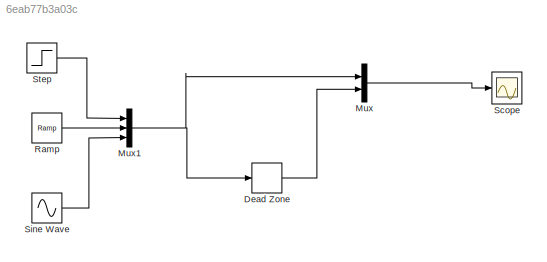
MODEL slx_6eab77b3a03c
KIND model
BLOCK [DeadZone] Dead Zone
BLOCK [Mux] Mux
  DisplayOption = bar
  Inputs = 2
  Ports = [2, 1]
BLOCK [Mux] Mux1
  DisplayOption = bar
  Inputs = 3
  Ports = [3, 1]
BLOCK [Reference] Ramp  REF=simulink/Sources/Ramp
  Ports = [0, 1]
  SourceBlock = simulink/Sources/Ramp
  SourceType = Ramp
  VectorParams1D = on
  X0 = 0
  slope = 1
  start = 0
BLOCK [Scope] Scope
  DataFormat = StructureWithTime
  Floating = off
  NumInputPorts = 1
  Ports = [1]
  SampleTime = 0
  ShowLegends = off
  TimeRange = 5
  ZoomMode = xonly
BLOCK [Sin] Sine Wave
  Amplitude = 5
  Frequency = 2*pi
  Ports = [0, 1]
  SampleTime = 0
BLOCK [Step] Step
  After = 5
  SampleTime = 0
LINE Dead Zone:1 -> Mux:2
NET Mux1:1 -> Dead Zone:1, Mux:1
LINE Mux:1 -> Scope:1
LINE Ramp:1 -> Mux1:2
LINE Sine Wave:1 -> Mux1:3
LINE Step:1 -> Mux1:1
note: NET lines group one-source signal fan-out (src -> all destinations, sorted); 1:1 wires keep LINE
